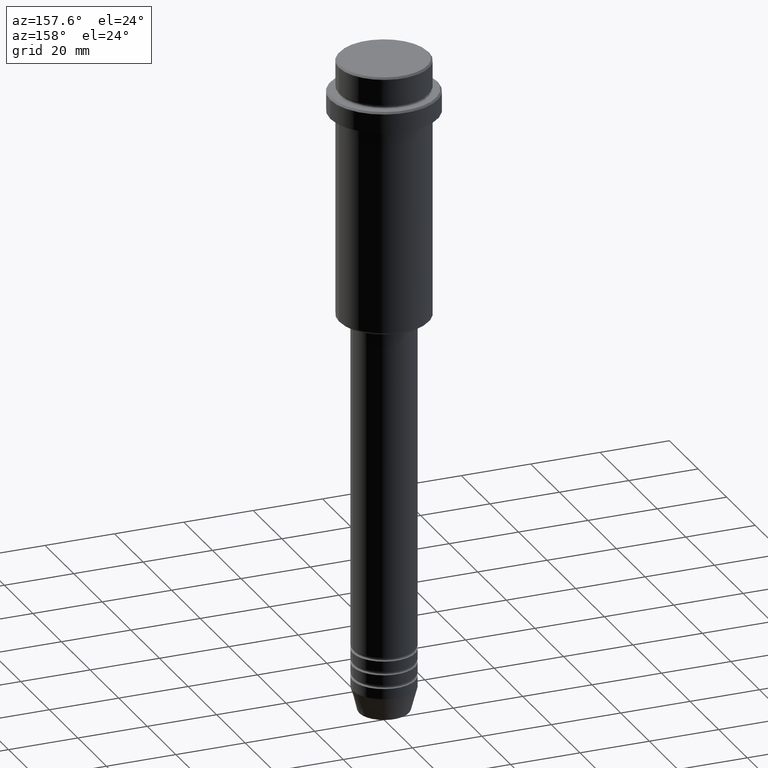
[diagram: clean part render]
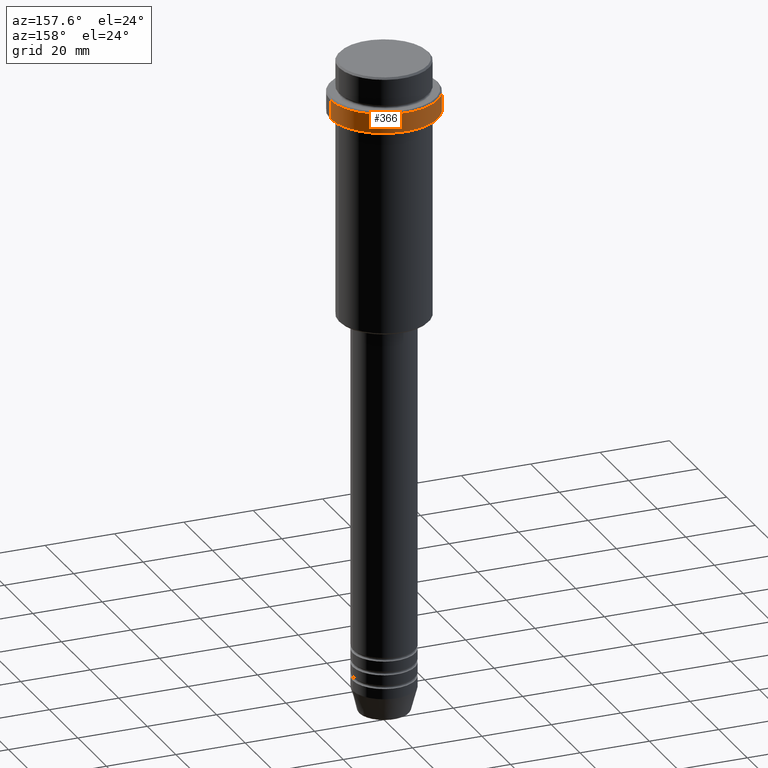
[diagram: same view with one face highlighted and labeled with its STEP entity id]
A machine part, auxiliary view. The second image highlights one B-rep face of the part: STEP entity #366.
In plain terms, the highlighted cylindrical surface (partial cylindrical patch) has radius 15.5 mm, axis along (-0, -0, 1).
Its self-contained STEP definition (entity closure, byte-faithful):
#91 = ORIENTED_EDGE ( 'NONE', *, *, #1084, .T. ) ;
#210 = DIRECTION ( 'NONE',  ( -0.000000000000000000, -0.000000000000000000, 1.000000000000000000 ) ) ;
#220 = CARTESIAN_POINT ( 'NONE',  ( -15.50000000000000000, 1.898202538678397557E-15, -9.500000000000014211 ) ) ;
#253 = DIRECTION ( 'NONE',  ( -0.000000000000000000, -0.000000000000000000, 1.000000000000000000 ) ) ;
#265 = VECTOR ( 'NONE', #424, 1000.000000000000000 ) ;
#269 = EDGE_CURVE ( 'NONE', #630, #789, #1387, .T. ) ;
#363 = VECTOR ( 'NONE', #889, 1000.000000000000000 ) ;
#366 = ADVANCED_FACE ( 'NONE', ( #964 ), #855, .T. ) ;
#417 = EDGE_CURVE ( 'NONE', #630, #814, #1349, .T. ) ;
#424 = DIRECTION ( 'NONE',  ( -0.000000000000000000, -0.000000000000000000, 1.000000000000000000 ) ) ;
#431 = CARTESIAN_POINT ( 'NONE',  ( 15.50000000000000000, 0.000000000000000000, -9.500000000000014211 ) ) ;
#461 = EDGE_LOOP ( 'NONE', ( #709, #1036, #91, #1211 ) ) ;
#554 = CARTESIAN_POINT ( 'NONE',  ( -15.50000000000000000, 1.898202538678397557E-15, 0.000000000000000000 ) ) ;
#583 = CARTESIAN_POINT ( 'NONE',  ( 0.000000000000000000, 0.000000000000000000, -15.00000000000000178 ) ) ;
#592 = AXIS2_PLACEMENT_3D ( 'NONE', #605, #1049, #1272 ) ;
#605 = CARTESIAN_POINT ( 'NONE',  ( 0.000000000000000000, 0.000000000000000000, -9.500000000000014211 ) ) ;
#629 = AXIS2_PLACEMENT_3D ( 'NONE', #1202, #210, #1286 ) ;
#630 = VERTEX_POINT ( 'NONE', #1059 ) ;
#705 = VERTEX_POINT ( 'NONE', #220 ) ;
#709 = ORIENTED_EDGE ( 'NONE', *, *, #417, .T. ) ;
#789 = VERTEX_POINT ( 'NONE', #431 ) ;
#814 = VERTEX_POINT ( 'NONE', #1004 ) ;
#824 = CIRCLE ( 'NONE', #592, 15.50000000000000000 ) ;
#855 = CYLINDRICAL_SURFACE ( 'NONE', #629, 15.50000000000000000 ) ;
#889 = DIRECTION ( 'NONE',  ( -0.000000000000000000, -0.000000000000000000, 1.000000000000000000 ) ) ;
#964 = FACE_OUTER_BOUND ( 'NONE', #461, .T. ) ;
#1000 = DIRECTION ( 'NONE',  ( 1.000000000000000000, 0.000000000000000000, 0.000000000000000000 ) ) ;
#1004 = CARTESIAN_POINT ( 'NONE',  ( -15.50000000000000000, 1.898202538678397557E-15, -15.00000000000000178 ) ) ;
#1036 = ORIENTED_EDGE ( 'NONE', *, *, #1256, .T. ) ;
#1049 = DIRECTION ( 'NONE',  ( 0.000000000000000000, 0.000000000000000000, -1.000000000000000000 ) ) ;
#1059 = CARTESIAN_POINT ( 'NONE',  ( 15.50000000000000000, 0.000000000000000000, -15.00000000000000178 ) ) ;
#1060 = CARTESIAN_POINT ( 'NONE',  ( 15.50000000000000000, 0.000000000000000000, 0.000000000000000000 ) ) ;
#1084 = EDGE_CURVE ( 'NONE', #705, #789, #824, .T. ) ;
#1202 = CARTESIAN_POINT ( 'NONE',  ( 0.000000000000000000, 0.000000000000000000, 0.000000000000000000 ) ) ;
#1211 = ORIENTED_EDGE ( 'NONE', *, *, #269, .F. ) ;
#1256 = EDGE_CURVE ( 'NONE', #814, #705, #1324, .T. ) ;
#1272 = DIRECTION ( 'NONE',  ( 1.000000000000000000, 0.000000000000000000, 0.000000000000000000 ) ) ;
#1286 = DIRECTION ( 'NONE',  ( 1.000000000000000000, 0.000000000000000000, 0.000000000000000000 ) ) ;
#1324 = LINE ( 'NONE', #554, #363 ) ;
#1349 = CIRCLE ( 'NONE', #1393, 15.50000000000000000 ) ;
#1387 = LINE ( 'NONE', #1060, #265 ) ;
#1393 = AXIS2_PLACEMENT_3D ( 'NONE', #583, #253, #1000 ) ;